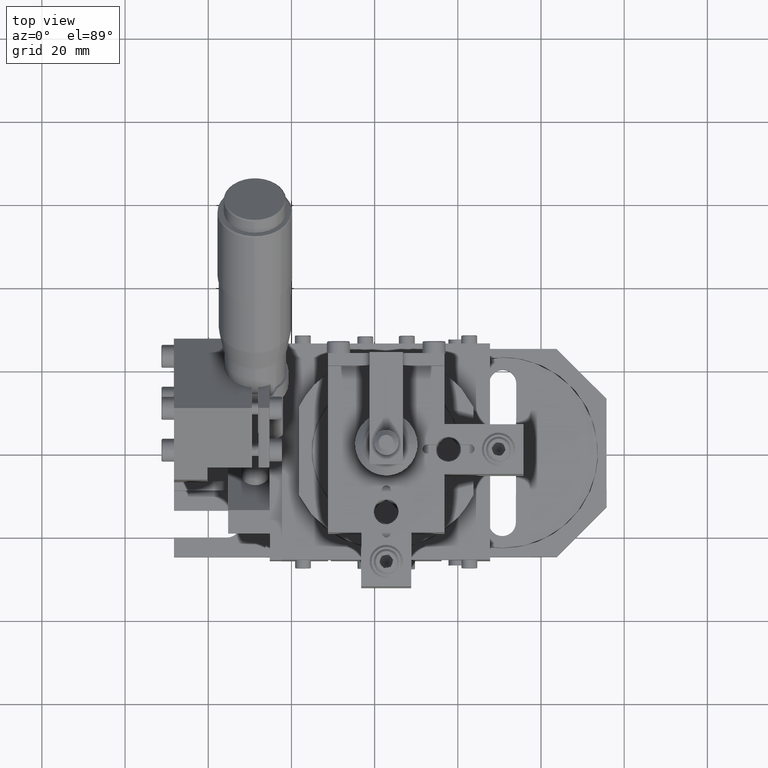
[diagram: clean part render]
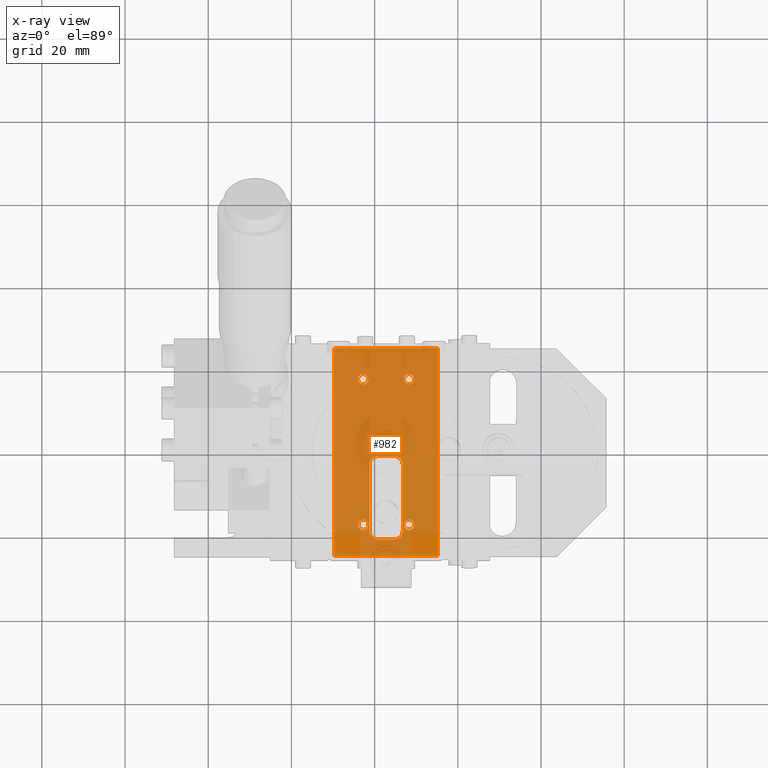
[diagram: x-ray — body ghosted, one internal face saturated and labeled with its STEP entity id]
A machine part, top view, then the same camera in x-ray: the body is ghosted and one INTERNAL B-rep face — a face not visible from any outside direction — is saturated and labeled: STEP entity #982.
In plain terms, the highlighted face is a freeform B-spline surface patch.
Its self-contained STEP definition (entity closure, byte-faithful):
#755=FACE_BOUND('',#3405,.T.);
#756=FACE_BOUND('',#3406,.T.);
#757=FACE_BOUND('',#3407,.T.);
#758=FACE_BOUND('',#3408,.T.);
#759=FACE_BOUND('',#3409,.T.);
#982=ADVANCED_FACE('',(#2186,#755,#756,#757,#758,#759),#42618,.T.);
#2186=FACE_OUTER_BOUND('',#3404,.T.);
#3404=EDGE_LOOP('',(#5074,#5075,#5076,#5077));
#3405=EDGE_LOOP('',(#5078,#5079,#5080,#5081,#5082,#5083,#5084,#5085));
#3406=EDGE_LOOP('',(#5086,#5087,#5088));
#3407=EDGE_LOOP('',(#5089,#5090,#5091));
#3408=EDGE_LOOP('',(#5092,#5093,#5094));
#3409=EDGE_LOOP('',(#5095,#5096,#5097));
#5074=ORIENTED_EDGE('',*,*,#34705,.T.);
#5075=ORIENTED_EDGE('',*,*,#34704,.F.);
#5076=ORIENTED_EDGE('',*,*,#34706,.T.);
#5077=ORIENTED_EDGE('',*,*,#34707,.T.);
#5078=ORIENTED_EDGE('',*,*,#34708,.T.);
#5079=ORIENTED_EDGE('',*,*,#34709,.T.);
#5080=ORIENTED_EDGE('',*,*,#34710,.T.);
#5081=ORIENTED_EDGE('',*,*,#34711,.T.);
#5082=ORIENTED_EDGE('',*,*,#34712,.T.);
#5083=ORIENTED_EDGE('',*,*,#34713,.T.);
#5084=ORIENTED_EDGE('',*,*,#34714,.T.);
#5085=ORIENTED_EDGE('',*,*,#34715,.T.);
#5086=ORIENTED_EDGE('',*,*,#34716,.T.);
#5087=ORIENTED_EDGE('',*,*,#34717,.T.);
#5088=ORIENTED_EDGE('',*,*,#34718,.T.);
#5089=ORIENTED_EDGE('',*,*,#34719,.T.);
#5090=ORIENTED_EDGE('',*,*,#34720,.T.);
#5091=ORIENTED_EDGE('',*,*,#34721,.T.);
#5092=ORIENTED_EDGE('',*,*,#34722,.T.);
#5093=ORIENTED_EDGE('',*,*,#34723,.T.);
#5094=ORIENTED_EDGE('',*,*,#34724,.T.);
#5095=ORIENTED_EDGE('',*,*,#34725,.T.);
#5096=ORIENTED_EDGE('',*,*,#34726,.T.);
#5097=ORIENTED_EDGE('',*,*,#34727,.T.);
#11476=PCURVE('',#42617,#17879);
#11477=PCURVE('',#42618,#17880);
#11478=PCURVE('',#42618,#17881);
#11479=PCURVE('',#42618,#17882);
#11480=PCURVE('',#42618,#17883);
#11481=PCURVE('',#42618,#17884);
#11482=PCURVE('',#42618,#17885);
#11483=PCURVE('',#42618,#17886);
#11484=PCURVE('',#42618,#17887);
#11485=PCURVE('',#42618,#17888);
#11486=PCURVE('',#42618,#17889);
#11487=PCURVE('',#42618,#17890);
#11488=PCURVE('',#42618,#17891);
#11489=PCURVE('',#42618,#17892);
#11490=PCURVE('',#42618,#17893);
#11491=PCURVE('',#42618,#17894);
#11492=PCURVE('',#42618,#17895);
#11493=PCURVE('',#42618,#17896);
#11494=PCURVE('',#42618,#17897);
#11495=PCURVE('',#42618,#17898);
#11496=PCURVE('',#42618,#17899);
#11497=PCURVE('',#42618,#17900);
#11498=PCURVE('',#42618,#17901);
#11499=PCURVE('',#42618,#17902);
#11500=PCURVE('',#42618,#17903);
#11502=PCURVE('',#42619,#17905);
#11616=PCURVE('',#43132,#18019);
#11617=PCURVE('',#43132,#18020);
#11619=PCURVE('',#43133,#18022);
#11636=PCURVE('',#43136,#18039);
#11637=PCURVE('',#43136,#18040);
#11639=PCURVE('',#43137,#18042);
#11667=PCURVE('',#42630,#18070);
#11672=PCURVE('',#43142,#18075);
#11675=PCURVE('',#42631,#18078);
#11680=PCURVE('',#43143,#18083);
#11681=PCURVE('',#42632,#18084);
#11688=PCURVE('',#43144,#18091);
#11689=PCURVE('',#42633,#18092);
#11696=PCURVE('',#43145,#18099);
#11698=PCURVE('',#42634,#18101);
#12247=PCURVE('',#42677,#18650);
#17879=DEFINITIONAL_REPRESENTATION('',(#24357),#93713);
#17880=DEFINITIONAL_REPRESENTATION('',(#24359),#93713);
#17881=DEFINITIONAL_REPRESENTATION('',(#24360),#93713);
#17882=DEFINITIONAL_REPRESENTATION('',(#24362),#93713);
#17883=DEFINITIONAL_REPRESENTATION('',(#24364),#93713);
#17884=DEFINITIONAL_REPRESENTATION('',(#37971),#93713);
#17885=DEFINITIONAL_REPRESENTATION('',(#24366),#93713);
#17886=DEFINITIONAL_REPRESENTATION('',(#37973),#93713);
#17887=DEFINITIONAL_REPRESENTATION('',(#24368),#93713);
#17888=DEFINITIONAL_REPRESENTATION('',(#37975),#93713);
#17889=DEFINITIONAL_REPRESENTATION('',(#24370),#93713);
#17890=DEFINITIONAL_REPRESENTATION('',(#37977),#93713);
#17891=DEFINITIONAL_REPRESENTATION('',(#24372),#93713);
#17892=DEFINITIONAL_REPRESENTATION('',(#37979),#93713);
#17893=DEFINITIONAL_REPRESENTATION('',(#37981),#93713);
#17894=DEFINITIONAL_REPRESENTATION('',(#37983),#93713);
#17895=DEFINITIONAL_REPRESENTATION('',(#37985),#93713);
#17896=DEFINITIONAL_REPRESENTATION('',(#37987),#93713);
#17897=DEFINITIONAL_REPRESENTATION('',(#37989),#93713);
#17898=DEFINITIONAL_REPRESENTATION('',(#37991),#93713);
#17899=DEFINITIONAL_REPRESENTATION('',(#37993),#93713);
#17900=DEFINITIONAL_REPRESENTATION('',(#37995),#93713);
#17901=DEFINITIONAL_REPRESENTATION('',(#37997),#93713);
#17902=DEFINITIONAL_REPRESENTATION('',(#37999),#93713);
#17903=DEFINITIONAL_REPRESENTATION('',(#38001),#93713);
#17905=DEFINITIONAL_REPRESENTATION('',(#24375),#93713);
#18019=DEFINITIONAL_REPRESENTATION('',(#24549),#93713);
#18020=DEFINITIONAL_REPRESENTATION('',(#24550),#93713);
#18022=DEFINITIONAL_REPRESENTATION('',(#24552),#93713);
#18039=DEFINITIONAL_REPRESENTATION('',(#24578),#93713);
#18040=DEFINITIONAL_REPRESENTATION('',(#24579),#93713);
#18042=DEFINITIONAL_REPRESENTATION('',(#24581),#93713);
#18070=DEFINITIONAL_REPRESENTATION('',(#24619),#93713);
#18075=DEFINITIONAL_REPRESENTATION('',(#24627),#93713);
#18078=DEFINITIONAL_REPRESENTATION('',(#24632),#93713);
#18083=DEFINITIONAL_REPRESENTATION('',(#24640),#93713);
#18084=DEFINITIONAL_REPRESENTATION('',(#24641),#93713);
#18091=DEFINITIONAL_REPRESENTATION('',(#24649),#93713);
#18092=DEFINITIONAL_REPRESENTATION('',(#24650),#93713);
#18099=DEFINITIONAL_REPRESENTATION('',(#24658),#93713);
#18101=DEFINITIONAL_REPRESENTATION('',(#24660),#93713);
#18650=DEFINITIONAL_REPRESENTATION('',(#25328),#93713);
#24356=B_SPLINE_CURVE_WITH_KNOTS('',1,(#52980,#52981),.UNSPECIFIED.,.F.,
 .F.,(2,2),(0.,49.9999999999996),.UNSPECIFIED.);
#24357=B_SPLINE_CURVE_WITH_KNOTS('',1,(#52982,#52983),.UNSPECIFIED.,.F.,
 .F.,(2,2),(0.,49.9999999999996),.UNSPECIFIED.);
#24358=B_SPLINE_CURVE_WITH_KNOTS('',1,(#52984,#52985),.UNSPECIFIED.,.F.,
 .F.,(2,2),(0.,24.9999999999999),.UNSPECIFIED.);
#24359=B_SPLINE_CURVE_WITH_KNOTS('',1,(#52986,#52987),.UNSPECIFIED.,.F.,
 .F.,(2,2),(0.,24.9999999999999),.UNSPECIFIED.);
#24360=B_SPLINE_CURVE_WITH_KNOTS('',1,(#52988,#52989),.UNSPECIFIED.,.F.,
 .F.,(2,2),(0.,49.9999999999996),.UNSPECIFIED.);
#24361=B_SPLINE_CURVE_WITH_KNOTS('',1,(#52990,#52991),.UNSPECIFIED.,.F.,
 .F.,(2,2),(-24.9999999999999,0.),.UNSPECIFIED.);
#24362=B_SPLINE_CURVE_WITH_KNOTS('',1,(#52992,#52993),.UNSPECIFIED.,.F.,
 .F.,(2,2),(-24.9999999999999,0.),.UNSPECIFIED.);
#24363=B_SPLINE_CURVE_WITH_KNOTS('',1,(#52994,#52995),.UNSPECIFIED.,.F.,
 .F.,(2,2),(0.,49.9999999999996),.UNSPECIFIED.);
#24364=B_SPLINE_CURVE_WITH_KNOTS('',1,(#52996,#52997),.UNSPECIFIED.,.F.,
 .F.,(2,2),(0.,49.9999999999996),.UNSPECIFIED.);
#24365=B_SPLINE_CURVE_WITH_KNOTS('',1,(#53004,#53005),.UNSPECIFIED.,.F.,
 .F.,(2,2),(0.,15.9999999999996),.UNSPECIFIED.);
#24366=B_SPLINE_CURVE_WITH_KNOTS('',1,(#53006,#53007),.UNSPECIFIED.,.F.,
 .F.,(2,2),(0.,15.9999999999996),.UNSPECIFIED.);
#24367=B_SPLINE_CURVE_WITH_KNOTS('',1,(#53014,#53015),.UNSPECIFIED.,.F.,
 .F.,(2,2),(0.,3.99999999999978),.UNSPECIFIED.);
#24368=B_SPLINE_CURVE_WITH_KNOTS('',1,(#53016,#53017),.UNSPECIFIED.,.F.,
 .F.,(2,2),(0.,3.99999999999978),.UNSPECIFIED.);
#24369=B_SPLINE_CURVE_WITH_KNOTS('',1,(#53024,#53025),.UNSPECIFIED.,.F.,
 .F.,(2,2),(0.,16.0000000000002),.UNSPECIFIED.);
#24370=B_SPLINE_CURVE_WITH_KNOTS('',1,(#53026,#53027),.UNSPECIFIED.,.F.,
 .F.,(2,2),(0.,16.0000000000002),.UNSPECIFIED.);
#24371=B_SPLINE_CURVE_WITH_KNOTS('',1,(#53034,#53035),.UNSPECIFIED.,.F.,
 .F.,(2,2),(0.,4.00000000000077),.UNSPECIFIED.);
#24372=B_SPLINE_CURVE_WITH_KNOTS('',1,(#53036,#53037),.UNSPECIFIED.,.F.,
 .F.,(2,2),(0.,4.00000000000077),.UNSPECIFIED.);
#24375=B_SPLINE_CURVE_WITH_KNOTS('',1,(#53146,#53147),.UNSPECIFIED.,.F.,
 .F.,(2,2),(0.,49.9999999999996),.UNSPECIFIED.);
#24549=B_SPLINE_CURVE_WITH_KNOTS('',1,(#53849,#53850),.UNSPECIFIED.,.F.,
 .F.,(2,2),(3.86258816758862,7.7251763351773),.UNSPECIFIED.);
#24550=B_SPLINE_CURVE_WITH_KNOTS('',1,(#53851,#53852),.UNSPECIFIED.,.F.,
 .F.,(2,2),(1.93211519136081,3.86258816758862),.UNSPECIFIED.);
#24552=B_SPLINE_CURVE_WITH_KNOTS('',1,(#53855,#53856),.UNSPECIFIED.,.F.,
 .F.,(2,2),(0.,1.93211519136081),.UNSPECIFIED.);
#24578=B_SPLINE_CURVE_WITH_KNOTS('',1,(#54066,#54067),.UNSPECIFIED.,.F.,
 .F.,(2,2),(3.86258816758872,7.7251763351773),.UNSPECIFIED.);
#24579=B_SPLINE_CURVE_WITH_KNOTS('',1,(#54068,#54069),.UNSPECIFIED.,.F.,
 .F.,(2,2),(1.93211519136131,3.86258816758872),.UNSPECIFIED.);
#24581=B_SPLINE_CURVE_WITH_KNOTS('',1,(#54072,#54073),.UNSPECIFIED.,.F.,
 .F.,(2,2),(0.,1.93211519136131),.UNSPECIFIED.);
#24619=B_SPLINE_CURVE_WITH_KNOTS('',1,(#54286,#54287),.UNSPECIFIED.,.F.,
 .F.,(2,2),(0.,15.9999999999996),.UNSPECIFIED.);
#24627=B_SPLINE_CURVE_WITH_KNOTS('',1,(#54320,#54321),.UNSPECIFIED.,.F.,
 .F.,(2,2),(-3.1415926535908,0.),.UNSPECIFIED.);
#24632=B_SPLINE_CURVE_WITH_KNOTS('',1,(#54330,#54331),.UNSPECIFIED.,.F.,
 .F.,(2,2),(0.,16.0000000000002),.UNSPECIFIED.);
#24640=B_SPLINE_CURVE_WITH_KNOTS('',1,(#54364,#54365),.UNSPECIFIED.,.F.,
 .F.,(2,2),(-3.14159265358918,0.),.UNSPECIFIED.);
#24641=B_SPLINE_CURVE_WITH_KNOTS('',1,(#54366,#54367),.UNSPECIFIED.,.F.,
 .F.,(2,2),(0.,3.99999999999978),.UNSPECIFIED.);
#24649=B_SPLINE_CURVE_WITH_KNOTS('',1,(#54406,#54407),.UNSPECIFIED.,.F.,
 .F.,(2,2),(-3.14159265358878,0.),.UNSPECIFIED.);
#24650=B_SPLINE_CURVE_WITH_KNOTS('',1,(#54408,#54409),.UNSPECIFIED.,.F.,
 .F.,(2,2),(0.,4.00000000000077),.UNSPECIFIED.);
#24658=B_SPLINE_CURVE_WITH_KNOTS('',1,(#54448,#54449),.UNSPECIFIED.,.F.,
 .F.,(2,2),(-3.14159265358951,0.),.UNSPECIFIED.);
#24660=B_SPLINE_CURVE_WITH_KNOTS('',1,(#54452,#54453),.UNSPECIFIED.,.F.,
 .F.,(2,2),(-24.9999999999999,0.),.UNSPECIFIED.);
#25328=B_SPLINE_CURVE_WITH_KNOTS('',1,(#56810,#56811),.UNSPECIFIED.,.F.,
 .F.,(2,2),(0.,24.9999999999999),.UNSPECIFIED.);
#31364=SURFACE_CURVE('',#24356,(#11476,#11478),.PCURVE_S1.);
#31365=SURFACE_CURVE('',#24358,(#11477,#12247),.PCURVE_S1.);
#31366=SURFACE_CURVE('',#24361,(#11479,#11698),.PCURVE_S1.);
#31367=SURFACE_CURVE('',#24363,(#11480,#11502),.PCURVE_S1.);
#31368=SURFACE_CURVE('',#37970,(#11481,#11696),.PCURVE_S1.);
#31369=SURFACE_CURVE('',#24365,(#11482,#11667),.PCURVE_S1.);
#31370=SURFACE_CURVE('',#37972,(#11483,#11672),.PCURVE_S1.);
#31371=SURFACE_CURVE('',#24367,(#11484,#11681),.PCURVE_S1.);
#31372=SURFACE_CURVE('',#37974,(#11485,#11688),.PCURVE_S1.);
#31373=SURFACE_CURVE('',#24369,(#11486,#11675),.PCURVE_S1.);
#31374=SURFACE_CURVE('',#37976,(#11487,#11680),.PCURVE_S1.);
#31375=SURFACE_CURVE('',#24371,(#11488,#11689),.PCURVE_S1.);
#31376=SURFACE_CURVE('',#37978,(#11489,#11636),.PCURVE_S1.);
#31377=SURFACE_CURVE('',#37980,(#11490,#11639),.PCURVE_S1.);
#31378=SURFACE_CURVE('',#37982,(#11491,#11637),.PCURVE_S1.);
#31379=SURFACE_CURVE('',#37984,(#11492),.PCURVE_S1.);
#31380=SURFACE_CURVE('',#37986,(#11493),.PCURVE_S1.);
#31381=SURFACE_CURVE('',#37988,(#11494),.PCURVE_S1.);
#31382=SURFACE_CURVE('',#37990,(#11495),.PCURVE_S1.);
#31383=SURFACE_CURVE('',#37992,(#11496),.PCURVE_S1.);
#31384=SURFACE_CURVE('',#37994,(#11497),.PCURVE_S1.);
#31385=SURFACE_CURVE('',#37996,(#11498,#11616),.PCURVE_S1.);
#31386=SURFACE_CURVE('',#37998,(#11499,#11619),.PCURVE_S1.);
#31387=SURFACE_CURVE('',#38000,(#11500,#11617),.PCURVE_S1.);
#34704=EDGE_CURVE('',#40505,#40503,#31364,.T.);
#34705=EDGE_CURVE('',#40506,#40503,#31365,.T.);
#34706=EDGE_CURVE('',#40505,#40507,#31366,.T.);
#34707=EDGE_CURVE('',#40507,#40506,#31367,.T.);
#34708=EDGE_CURVE('',#40515,#40508,#31368,.T.);
#34709=EDGE_CURVE('',#40508,#40509,#31369,.T.);
#34710=EDGE_CURVE('',#40509,#40510,#31370,.T.);
#34711=EDGE_CURVE('',#40510,#40511,#31371,.T.);
#34712=EDGE_CURVE('',#40511,#40512,#31372,.T.);
#34713=EDGE_CURVE('',#40512,#40513,#31373,.T.);
#34714=EDGE_CURVE('',#40513,#40514,#31374,.T.);
#34715=EDGE_CURVE('',#40514,#40515,#31375,.T.);
#34716=EDGE_CURVE('',#40517,#40516,#31376,.T.);
#34717=EDGE_CURVE('',#40516,#40593,#31377,.T.);
#34718=EDGE_CURVE('',#40593,#40517,#31378,.T.);
#34719=EDGE_CURVE('',#40519,#40518,#31379,.T.);
#34720=EDGE_CURVE('',#40518,#41351,#31380,.T.);
#34721=EDGE_CURVE('',#41351,#40519,#31381,.T.);
#34722=EDGE_CURVE('',#40520,#40404,#31382,.T.);
#34723=EDGE_CURVE('',#40404,#40403,#31383,.T.);
#34724=EDGE_CURVE('',#40403,#40520,#31384,.T.);
#34725=EDGE_CURVE('',#40522,#40521,#31385,.T.);
#34726=EDGE_CURVE('',#40521,#40585,#31386,.T.);
#34727=EDGE_CURVE('',#40585,#40522,#31387,.T.);
#37970=(
BOUNDED_CURVE()
B_SPLINE_CURVE(2,(#52998,#52999,#53000),.UNSPECIFIED.,.F.,.F.)
B_SPLINE_CURVE_WITH_KNOTS((3,3),(-3.14159265358951,0.),.UNSPECIFIED.)
CURVE()
GEOMETRIC_REPRESENTATION_ITEM()
RATIONAL_B_SPLINE_CURVE((1.,0.707106781186641,1.))
REPRESENTATION_ITEM('')
);
#37971=(
BOUNDED_CURVE()
B_SPLINE_CURVE(2,(#53001,#53002,#53003),.UNSPECIFIED.,.F.,.F.)
B_SPLINE_CURVE_WITH_KNOTS((3,3),(-3.14159265358951,0.),.UNSPECIFIED.)
CURVE()
GEOMETRIC_REPRESENTATION_ITEM()
RATIONAL_B_SPLINE_CURVE((1.,0.707106900395886,1.))
REPRESENTATION_ITEM('')
);
#37972=(
BOUNDED_CURVE()
B_SPLINE_CURVE(2,(#53008,#53009,#53010),.UNSPECIFIED.,.F.,.F.)
B_SPLINE_CURVE_WITH_KNOTS((3,3),(-3.1415926535908,0.),.UNSPECIFIED.)
CURVE()
GEOMETRIC_REPRESENTATION_ITEM()
RATIONAL_B_SPLINE_CURVE((1.,0.707106781186321,1.))
REPRESENTATION_ITEM('')
);
#37973=(
BOUNDED_CURVE()
B_SPLINE_CURVE(2,(#53011,#53012,#53013),.UNSPECIFIED.,.F.,.F.)
B_SPLINE_CURVE_WITH_KNOTS((3,3),(-3.1415926535908,0.),.UNSPECIFIED.)
CURVE()
GEOMETRIC_REPRESENTATION_ITEM()
RATIONAL_B_SPLINE_CURVE((1.,0.707106781186369,1.))
REPRESENTATION_ITEM('')
);
#37974=(
BOUNDED_CURVE()
B_SPLINE_CURVE(2,(#53018,#53019,#53020),.UNSPECIFIED.,.F.,.F.)
B_SPLINE_CURVE_WITH_KNOTS((3,3),(-3.14159265358878,0.),.UNSPECIFIED.)
CURVE()
GEOMETRIC_REPRESENTATION_ITEM()
RATIONAL_B_SPLINE_CURVE((1.,0.707106781186784,1.))
REPRESENTATION_ITEM('')
);
#37975=(
BOUNDED_CURVE()
B_SPLINE_CURVE(2,(#53021,#53022,#53023),.UNSPECIFIED.,.F.,.F.)
B_SPLINE_CURVE_WITH_KNOTS((3,3),(-3.14159265358878,0.),.UNSPECIFIED.)
CURVE()
GEOMETRIC_REPRESENTATION_ITEM()
RATIONAL_B_SPLINE_CURVE((1.,0.707106900396014,1.))
REPRESENTATION_ITEM('')
);
#37976=(
BOUNDED_CURVE()
B_SPLINE_CURVE(2,(#53028,#53029,#53030),.UNSPECIFIED.,.F.,.F.)
B_SPLINE_CURVE_WITH_KNOTS((3,3),(-3.14159265358918,0.),.UNSPECIFIED.)
CURVE()
GEOMETRIC_REPRESENTATION_ITEM()
RATIONAL_B_SPLINE_CURVE((1.,0.707106781186683,1.))
REPRESENTATION_ITEM('')
);
#37977=(
BOUNDED_CURVE()
B_SPLINE_CURVE(2,(#53031,#53032,#53033),.UNSPECIFIED.,.F.,.F.)
B_SPLINE_CURVE_WITH_KNOTS((3,3),(-3.14159265358918,0.),.UNSPECIFIED.)
CURVE()
GEOMETRIC_REPRESENTATION_ITEM()
RATIONAL_B_SPLINE_CURVE((1.,0.707106900395943,1.))
REPRESENTATION_ITEM('')
);
#37978=(
BOUNDED_CURVE()
B_SPLINE_CURVE(2,(#53038,#53039,#53040,#53041,#53042),.UNSPECIFIED.,.F.,
 .F.)
B_SPLINE_CURVE_WITH_KNOTS((3,2,3),(3.86258816758872,5.79388225138301,7.7251763351773),
 .UNSPECIFIED.)
CURVE()
GEOMETRIC_REPRESENTATION_ITEM()
RATIONAL_B_SPLINE_CURVE((1.,0.707106781186572,1.,0.707106781186572,1.))
REPRESENTATION_ITEM('')
);
#37979=(
BOUNDED_CURVE()
B_SPLINE_CURVE(2,(#53043,#53044,#53045,#53046,#53047),.UNSPECIFIED.,.F.,
 .F.)
B_SPLINE_CURVE_WITH_KNOTS((3,2,3),(3.86258816758872,5.79388225138301,7.7251763351773),
 .UNSPECIFIED.)
CURVE()
GEOMETRIC_REPRESENTATION_ITEM()
RATIONAL_B_SPLINE_CURVE((1.,0.707106781186548,1.,0.707106781186548,1.))
REPRESENTATION_ITEM('')
);
#37980=(
BOUNDED_CURVE()
B_SPLINE_CURVE(2,(#53048,#53049,#53050,#53051,#53052),.UNSPECIFIED.,.F.,
 .F.)
B_SPLINE_CURVE_WITH_KNOTS((3,2,3),(0.,0.966057595680653,1.93211519136131),
 .UNSPECIFIED.)
CURVE()
GEOMETRIC_REPRESENTATION_ITEM()
RATIONAL_B_SPLINE_CURVE((1.,0.923815626942182,1.,0.923815626942182,1.))
REPRESENTATION_ITEM('')
);
#37981=(
BOUNDED_CURVE()
B_SPLINE_CURVE(2,(#53053,#53054,#53055,#53056,#53057),.UNSPECIFIED.,.F.,
 .F.)
B_SPLINE_CURVE_WITH_KNOTS((3,2,3),(0.,1.93120333910201,1.93211519136131),
 .UNSPECIFIED.)
CURVE()
GEOMETRIC_REPRESENTATION_ITEM()
RATIONAL_B_SPLINE_CURVE((1.,0.707106781186548,1.,0.99999994424895,1.))
REPRESENTATION_ITEM('')
);
#37982=(
BOUNDED_CURVE()
B_SPLINE_CURVE(2,(#53058,#53059,#53060),.UNSPECIFIED.,.F.,.F.)
B_SPLINE_CURVE_WITH_KNOTS((3,3),(1.93211519136131,3.86258816758872),
 .UNSPECIFIED.)
CURVE()
GEOMETRIC_REPRESENTATION_ITEM()
RATIONAL_B_SPLINE_CURVE((1.,0.707342858363986,1.))
REPRESENTATION_ITEM('')
);
#37983=(
BOUNDED_CURVE()
B_SPLINE_CURVE(2,(#53061,#53062,#53063),.UNSPECIFIED.,.F.,.F.)
B_SPLINE_CURVE_WITH_KNOTS((3,3),(1.93211519136131,3.86258816758872),
 .UNSPECIFIED.)
CURVE()
GEOMETRIC_REPRESENTATION_ITEM()
RATIONAL_B_SPLINE_CURVE((1.,0.707342858363987,1.))
REPRESENTATION_ITEM('')
);
#37984=(
BOUNDED_CURVE()
B_SPLINE_CURVE(2,(#53064,#53065,#53066,#53067,#53068),.UNSPECIFIED.,.F.,
 .F.)
B_SPLINE_CURVE_WITH_KNOTS((3,2,3),(3.86258816758865,5.79388225138298,7.7251763351773),
 .UNSPECIFIED.)
CURVE()
GEOMETRIC_REPRESENTATION_ITEM()
RATIONAL_B_SPLINE_CURVE((1.,0.707106781186548,1.,0.707106781186548,1.))
REPRESENTATION_ITEM('')
);
#37985=(
BOUNDED_CURVE()
B_SPLINE_CURVE(2,(#53069,#53070,#53071,#53072,#53073),.UNSPECIFIED.,.F.,
 .F.)
B_SPLINE_CURVE_WITH_KNOTS((3,2,3),(3.86258816758865,5.79388225138298,7.7251763351773),
 .UNSPECIFIED.)
CURVE()
GEOMETRIC_REPRESENTATION_ITEM()
RATIONAL_B_SPLINE_CURVE((1.,0.707106781186548,1.,0.707106781186548,1.))
REPRESENTATION_ITEM('')
);
#37986=(
BOUNDED_CURVE()
B_SPLINE_CURVE(2,(#53074,#53075,#53076,#53077,#53078),.UNSPECIFIED.,.F.,
 .F.)
B_SPLINE_CURVE_WITH_KNOTS((3,2,3),(0.,1.93129408379433,1.93220597889927),
 .UNSPECIFIED.)
CURVE()
GEOMETRIC_REPRESENTATION_ITEM()
RATIONAL_B_SPLINE_CURVE((1.,0.707106781186548,1.,0.99999994424895,1.))
REPRESENTATION_ITEM('')
);
#37987=(
BOUNDED_CURVE()
B_SPLINE_CURVE(2,(#53079,#53080,#53081,#53082,#53083),.UNSPECIFIED.,.F.,
 .F.)
B_SPLINE_CURVE_WITH_KNOTS((3,2,3),(0.,1.93129408379433,1.93220597889927),
 .UNSPECIFIED.)
CURVE()
GEOMETRIC_REPRESENTATION_ITEM()
RATIONAL_B_SPLINE_CURVE((1.,0.707106781186548,1.,0.99999994424895,1.))
REPRESENTATION_ITEM('')
);
#37988=(
BOUNDED_CURVE()
B_SPLINE_CURVE(2,(#53084,#53085,#53086),.UNSPECIFIED.,.F.,.F.)
B_SPLINE_CURVE_WITH_KNOTS((3,3),(1.93220597889927,3.86258816758865),
 .UNSPECIFIED.)
CURVE()
GEOMETRIC_REPRESENTATION_ITEM()
RATIONAL_B_SPLINE_CURVE((1.,0.707342858363708,1.))
REPRESENTATION_ITEM('')
);
#37989=(
BOUNDED_CURVE()
B_SPLINE_CURVE(2,(#53087,#53088,#53089),.UNSPECIFIED.,.F.,.F.)
B_SPLINE_CURVE_WITH_KNOTS((3,3),(1.93220597889927,3.86258816758865),
 .UNSPECIFIED.)
CURVE()
GEOMETRIC_REPRESENTATION_ITEM()
RATIONAL_B_SPLINE_CURVE((1.,0.707342858363708,1.))
REPRESENTATION_ITEM('')
);
#37990=(
BOUNDED_CURVE()
B_SPLINE_CURVE(2,(#53090,#53091,#53092,#53093,#53094),.UNSPECIFIED.,.F.,
 .F.)
B_SPLINE_CURVE_WITH_KNOTS((3,2,3),(3.86258816758865,5.79388225138298,7.7251763351773),
 .UNSPECIFIED.)
CURVE()
GEOMETRIC_REPRESENTATION_ITEM()
RATIONAL_B_SPLINE_CURVE((1.,0.707106781186548,1.,0.707106781186548,1.))
REPRESENTATION_ITEM('')
);
#37991=(
BOUNDED_CURVE()
B_SPLINE_CURVE(2,(#53095,#53096,#53097,#53098,#53099),.UNSPECIFIED.,.F.,
 .F.)
B_SPLINE_CURVE_WITH_KNOTS((3,2,3),(3.86258816758865,5.79388225138298,7.7251763351773),
 .UNSPECIFIED.)
CURVE()
GEOMETRIC_REPRESENTATION_ITEM()
RATIONAL_B_SPLINE_CURVE((1.,0.707106781186548,1.,0.707106781186548,1.))
REPRESENTATION_ITEM('')
);
#37992=(
BOUNDED_CURVE()
B_SPLINE_CURVE(2,(#53100,#53101,#53102,#53103,#53104),.UNSPECIFIED.,.F.,
 .F.)
B_SPLINE_CURVE_WITH_KNOTS((3,2,3),(0.,1.93129408379433,1.93220597889973),
 .UNSPECIFIED.)
CURVE()
GEOMETRIC_REPRESENTATION_ITEM()
RATIONAL_B_SPLINE_CURVE((1.,0.707106781186548,1.,0.99999994424895,1.))
REPRESENTATION_ITEM('')
);
#37993=(
BOUNDED_CURVE()
B_SPLINE_CURVE(2,(#53105,#53106,#53107,#53108,#53109),.UNSPECIFIED.,.F.,
 .F.)
B_SPLINE_CURVE_WITH_KNOTS((3,2,3),(0.,1.93129408379433,1.93220597889973),
 .UNSPECIFIED.)
CURVE()
GEOMETRIC_REPRESENTATION_ITEM()
RATIONAL_B_SPLINE_CURVE((1.,0.707106781186548,1.,0.99999994424895,1.))
REPRESENTATION_ITEM('')
);
#37994=(
BOUNDED_CURVE()
B_SPLINE_CURVE(2,(#53110,#53111,#53112),.UNSPECIFIED.,.F.,.F.)
B_SPLINE_CURVE_WITH_KNOTS((3,3),(1.93220597889973,3.86258816758865),
 .UNSPECIFIED.)
CURVE()
GEOMETRIC_REPRESENTATION_ITEM()
RATIONAL_B_SPLINE_CURVE((1.,0.707342858363826,1.))
REPRESENTATION_ITEM('')
);
#37995=(
BOUNDED_CURVE()
B_SPLINE_CURVE(2,(#53113,#53114,#53115),.UNSPECIFIED.,.F.,.F.)
B_SPLINE_CURVE_WITH_KNOTS((3,3),(1.93220597889973,3.86258816758865),
 .UNSPECIFIED.)
CURVE()
GEOMETRIC_REPRESENTATION_ITEM()
RATIONAL_B_SPLINE_CURVE((1.,0.707342858363826,1.))
REPRESENTATION_ITEM('')
);
#37996=(
BOUNDED_CURVE()
B_SPLINE_CURVE(2,(#53116,#53117,#53118,#53119,#53120),.UNSPECIFIED.,.F.,
 .F.)
B_SPLINE_CURVE_WITH_KNOTS((3,2,3),(3.86258816758862,5.79388225138296,7.7251763351773),
 .UNSPECIFIED.)
CURVE()
GEOMETRIC_REPRESENTATION_ITEM()
RATIONAL_B_SPLINE_CURVE((1.,0.707106781186554,1.,0.707106781186554,1.))
REPRESENTATION_ITEM('')
);
#37997=(
BOUNDED_CURVE()
B_SPLINE_CURVE(2,(#53121,#53122,#53123,#53124,#53125),.UNSPECIFIED.,.F.,
 .F.)
B_SPLINE_CURVE_WITH_KNOTS((3,2,3),(3.86258816758862,5.79388225138296,7.7251763351773),
 .UNSPECIFIED.)
CURVE()
GEOMETRIC_REPRESENTATION_ITEM()
RATIONAL_B_SPLINE_CURVE((1.,0.707106781186548,1.,0.707106781186548,1.))
REPRESENTATION_ITEM('')
);
#37998=(
BOUNDED_CURVE()
B_SPLINE_CURVE(2,(#53126,#53127,#53128,#53129,#53130),.UNSPECIFIED.,.F.,
 .F.)
B_SPLINE_CURVE_WITH_KNOTS((3,2,3),(0.,0.966057595680404,1.93211519136081),
 .UNSPECIFIED.)
CURVE()
GEOMETRIC_REPRESENTATION_ITEM()
RATIONAL_B_SPLINE_CURVE((1.,0.923815626942225,1.,0.923815626942225,1.))
REPRESENTATION_ITEM('')
);
#37999=(
BOUNDED_CURVE()
B_SPLINE_CURVE(2,(#53131,#53132,#53133,#53134,#53135),.UNSPECIFIED.,.F.,
 .F.)
B_SPLINE_CURVE_WITH_KNOTS((3,2,3),(0.,1.93120333910205,1.93211519136081),
 .UNSPECIFIED.)
CURVE()
GEOMETRIC_REPRESENTATION_ITEM()
RATIONAL_B_SPLINE_CURVE((1.,0.707106781186548,1.,0.99999994424895,1.))
REPRESENTATION_ITEM('')
);
#38000=(
BOUNDED_CURVE()
B_SPLINE_CURVE(2,(#53136,#53137,#53138),.UNSPECIFIED.,.F.,.F.)
B_SPLINE_CURVE_WITH_KNOTS((3,3),(1.93211519136081,3.86258816758862),
 .UNSPECIFIED.)
CURVE()
GEOMETRIC_REPRESENTATION_ITEM()
RATIONAL_B_SPLINE_CURVE((1.,0.707342858363908,1.))
REPRESENTATION_ITEM('')
);
#38001=(
BOUNDED_CURVE()
B_SPLINE_CURVE(2,(#53139,#53140,#53141),.UNSPECIFIED.,.F.,.F.)
B_SPLINE_CURVE_WITH_KNOTS((3,3),(1.93211519136081,3.86258816758862),
 .UNSPECIFIED.)
CURVE()
GEOMETRIC_REPRESENTATION_ITEM()
RATIONAL_B_SPLINE_CURVE((1.,0.707342858363848,1.))
REPRESENTATION_ITEM('')
);
#40403=VERTEX_POINT('',#50518);
#40404=VERTEX_POINT('',#50519);
#40503=VERTEX_POINT('',#50618);
#40505=VERTEX_POINT('',#50620);
#40506=VERTEX_POINT('',#50621);
#40507=VERTEX_POINT('',#50622);
#40508=VERTEX_POINT('',#50623);
#40509=VERTEX_POINT('',#50624);
#40510=VERTEX_POINT('',#50625);
#40511=VERTEX_POINT('',#50626);
#40512=VERTEX_POINT('',#50627);
#40513=VERTEX_POINT('',#50628);
#40514=VERTEX_POINT('',#50629);
#40515=VERTEX_POINT('',#50630);
#40516=VERTEX_POINT('',#50631);
#40517=VERTEX_POINT('',#50632);
#40518=VERTEX_POINT('',#50633);
#40519=VERTEX_POINT('',#50634);
#40520=VERTEX_POINT('',#50635);
#40521=VERTEX_POINT('',#50636);
#40522=VERTEX_POINT('',#50637);
#40585=VERTEX_POINT('',#50700);
#40593=VERTEX_POINT('',#50708);
#41351=VERTEX_POINT('',#51466);
#42617=B_SPLINE_SURFACE_WITH_KNOTS('',1,1,((#44908,#44909),(#44910,#44911)),
 .UNSPECIFIED.,.F.,.F.,.F.,(2,2),(2,2),(-55.1200801138659,5.12008011386659),
(-2.32000000000011,0.320000000000117),.UNSPECIFIED.);
#42618=B_SPLINE_SURFACE_WITH_KNOTS('',1,1,((#44912,#44913),(#44914,#44915)),
 .UNSPECIFIED.,.F.,.F.,.F.,(2,2),(2,2),(-5.14011526609873,55.1401152660982),
(-2.66015041833105,27.6601504183311),.UNSPECIFIED.);
#42619=B_SPLINE_SURFACE_WITH_KNOTS('',1,1,((#44916,#44917),(#44918,#44919)),
 .UNSPECIFIED.,.F.,.F.,.F.,(2,2),(2,2),(-5.12008011386671,55.1200801138659),
(-0.320000000000113,2.32000000000012),.UNSPECIFIED.);
#42630=B_SPLINE_SURFACE_WITH_KNOTS('',1,1,((#45278,#45279),(#45280,#45281)),
 .UNSPECIFIED.,.F.,.F.,.F.,(2,2),(2,2),(-6.10229190591014,0.663844718719093),
(0.279919886134121,19.7200801138662),.UNSPECIFIED.);
#42631=B_SPLINE_SURFACE_WITH_KNOTS('',1,1,((#45300,#45301),(#45302,#45303)),
 .UNSPECIFIED.,.F.,.F.,.F.,(2,2),(2,2),(-6.10229190591042,0.663844718719164),
(0.279919886133675,19.7200801138665),.UNSPECIFIED.);
#42632=B_SPLINE_SURFACE_WITH_KNOTS('',1,1,((#45322,#45323),(#45324,#45325)),
 .UNSPECIFIED.,.F.,.F.,.F.,(2,2),(2,2),(-3.93575823843596,0.46688711258509),
(1.47991988613409,6.52008011386652),.UNSPECIFIED.);
#42633=B_SPLINE_SURFACE_WITH_KNOTS('',1,1,((#45344,#45345),(#45346,#45347)),
 .UNSPECIFIED.,.F.,.F.,.F.,(2,2),(2,2),(-3.93575823843589,0.466887112585181),
(1.47991988613303,6.52008011386654),.UNSPECIFIED.);
#42634=B_SPLINE_SURFACE_WITH_KNOTS('',1,1,((#45366,#45367),(#45368,#45369)),
 .UNSPECIFIED.,.F.,.F.,.F.,(2,2),(2,2),(6.70790581162318,8.44790581162321),
(-15.1200801138667,15.1200801138657),.UNSPECIFIED.);
#42677=B_SPLINE_SURFACE_WITH_KNOTS('',1,1,((#46360,#46361),(#46362,#46363)),
 .UNSPECIFIED.,.F.,.F.,.F.,(2,2),(2,2),(-8.52000000000001,8.52000000000001),
(-16.0800801138661,16.0800801138672),.UNSPECIFIED.);
#43132=(
BOUNDED_SURFACE()
B_SPLINE_SURFACE(1,2,((#45098,#45099,#45100,#45101,#45102,#45103,#45104,
#45105,#45106),(#45107,#45108,#45109,#45110,#45111,#45112,#45113,#45114,
#45115)),.UNSPECIFIED.,.F.,.F.,.F.)
B_SPLINE_SURFACE_WITH_KNOTS((2,2),(3,2,2,2,3),(0.,14.1720000000006),(0.,
1.5707963267949,3.14159265358979,4.71238898038469,6.28318530717959),
 .UNSPECIFIED.)
GEOMETRIC_REPRESENTATION_ITEM()
RATIONAL_B_SPLINE_SURFACE(((1.,0.707106781186548,1.,0.707106781186548,1.,
0.707106781186548,1.,0.707106781186548,1.),(1.,0.707106781186548,1.,0.707106781186548,
1.,0.707106781186548,1.,0.707106781186548,1.)))
REPRESENTATION_ITEM('')
SURFACE()
);
#43133=(
BOUNDED_SURFACE()
B_SPLINE_SURFACE(1,2,((#45116,#45117,#45118,#45119,#45120,#45121,#45122,
#45123,#45124),(#45125,#45126,#45127,#45128,#45129,#45130,#45131,#45132,
#45133)),.UNSPECIFIED.,.F.,.F.,.F.)
B_SPLINE_SURFACE_WITH_KNOTS((2,2),(3,2,2,2,3),(0.,14.1720000000006),(0.,
1.5707963267949,3.14159265358979,4.71238898038469,6.28318530717959),
 .UNSPECIFIED.)
GEOMETRIC_REPRESENTATION_ITEM()
RATIONAL_B_SPLINE_SURFACE(((1.,0.707106781186548,1.,0.707106781186548,1.,
0.707106781186548,1.,0.707106781186548,1.),(1.,0.707106781186548,1.,0.707106781186548,
1.,0.707106781186548,1.,0.707106781186548,1.)))
REPRESENTATION_ITEM('')
SURFACE()
);
#43136=(
BOUNDED_SURFACE()
B_SPLINE_SURFACE(1,2,((#45170,#45171,#45172,#45173,#45174,#45175,#45176,
#45177,#45178),(#45179,#45180,#45181,#45182,#45183,#45184,#45185,#45186,
#45187)),.UNSPECIFIED.,.F.,.F.,.F.)
B_SPLINE_SURFACE_WITH_KNOTS((2,2),(3,2,2,2,3),(0.,3.49699725948614),(0.,
1.5707963267949,3.14159265358979,4.71238898038469,6.28318530717959),
 .UNSPECIFIED.)
GEOMETRIC_REPRESENTATION_ITEM()
RATIONAL_B_SPLINE_SURFACE(((1.,0.707106781186548,1.,0.707106781186548,1.,
0.707106781186548,1.,0.707106781186548,1.),(1.,0.707106781186548,1.,0.707106781186548,
1.,0.707106781186548,1.,0.707106781186548,1.)))
REPRESENTATION_ITEM('')
SURFACE()
);
#43137=(
BOUNDED_SURFACE()
B_SPLINE_SURFACE(1,2,((#45188,#45189,#45190,#45191,#45192,#45193,#45194,
#45195,#45196),(#45197,#45198,#45199,#45200,#45201,#45202,#45203,#45204,
#45205)),.UNSPECIFIED.,.F.,.F.,.F.)
B_SPLINE_SURFACE_WITH_KNOTS((2,2),(3,2,2,2,3),(0.,3.49699725948614),(0.,
1.5707963267949,3.14159265358979,4.71238898038469,6.28318530717959),
 .UNSPECIFIED.)
GEOMETRIC_REPRESENTATION_ITEM()
RATIONAL_B_SPLINE_SURFACE(((1.,0.707106781186548,1.,0.707106781186548,1.,
0.707106781186548,1.,0.707106781186548,1.),(1.,0.707106781186548,1.,0.707106781186548,
1.,0.707106781186548,1.,0.707106781186548,1.)))
REPRESENTATION_ITEM('')
SURFACE()
);
#43142=(
BOUNDED_SURFACE()
B_SPLINE_SURFACE(1,2,((#45282,#45283,#45284,#45285,#45286,#45287,#45288,
#45289,#45290),(#45291,#45292,#45293,#45294,#45295,#45296,#45297,#45298,
#45299)),.UNSPECIFIED.,.F.,.F.,.F.)
B_SPLINE_SURFACE_WITH_KNOTS((2,2),(3,2,2,2,3),(0.,6.76613662462955),(0.,
1.5707963267949,3.14159265358979,4.71238898038469,6.28318530717959),
 .UNSPECIFIED.)
GEOMETRIC_REPRESENTATION_ITEM()
RATIONAL_B_SPLINE_SURFACE(((1.,0.707106781186548,1.,0.707106781186548,1.,
0.707106781186548,1.,0.707106781186548,1.),(1.,0.707106781186548,1.,0.707106781186548,
1.,0.707106781186548,1.,0.707106781186548,1.)))
REPRESENTATION_ITEM('')
SURFACE()
);
#43143=(
BOUNDED_SURFACE()
B_SPLINE_SURFACE(1,2,((#45304,#45305,#45306,#45307,#45308,#45309,#45310,
#45311,#45312),(#45313,#45314,#45315,#45316,#45317,#45318,#45319,#45320,
#45321)),.UNSPECIFIED.,.F.,.F.,.F.)
B_SPLINE_SURFACE_WITH_KNOTS((2,2),(3,2,2,2,3),(0.,6.76613662462955),(0.,
1.5707963267949,3.14159265358979,4.71238898038469,6.28318530717959),
 .UNSPECIFIED.)
GEOMETRIC_REPRESENTATION_ITEM()
RATIONAL_B_SPLINE_SURFACE(((1.,0.707106781186548,1.,0.707106781186548,1.,
0.707106781186548,1.,0.707106781186548,1.),(1.,0.707106781186548,1.,0.707106781186548,
1.,0.707106781186548,1.,0.707106781186548,1.)))
REPRESENTATION_ITEM('')
SURFACE()
);
#43144=(
BOUNDED_SURFACE()
B_SPLINE_SURFACE(1,2,((#45326,#45327,#45328,#45329,#45330,#45331,#45332,
#45333,#45334),(#45335,#45336,#45337,#45338,#45339,#45340,#45341,#45342,
#45343)),.UNSPECIFIED.,.F.,.F.,.F.)
B_SPLINE_SURFACE_WITH_KNOTS((2,2),(3,2,2,2,3),(0.,6.76613662462944),(0.,
1.5707963267949,3.14159265358979,4.71238898038469,6.28318530717959),
 .UNSPECIFIED.)
GEOMETRIC_REPRESENTATION_ITEM()
RATIONAL_B_SPLINE_SURFACE(((1.,0.707106781186548,1.,0.707106781186548,1.,
0.707106781186548,1.,0.707106781186548,1.),(1.,0.707106781186548,1.,0.707106781186548,
1.,0.707106781186548,1.,0.707106781186548,1.)))
REPRESENTATION_ITEM('')
SURFACE()
);
#43145=(
BOUNDED_SURFACE()
B_SPLINE_SURFACE(1,2,((#45348,#45349,#45350,#45351,#45352,#45353,#45354,
#45355,#45356),(#45357,#45358,#45359,#45360,#45361,#45362,#45363,#45364,
#45365)),.UNSPECIFIED.,.F.,.F.,.F.)
B_SPLINE_SURFACE_WITH_KNOTS((2,2),(3,2,2,2,3),(0.,6.76613662462931),(0.,
1.5707963267949,3.14159265358979,4.71238898038469,6.28318530717959),
 .UNSPECIFIED.)
GEOMETRIC_REPRESENTATION_ITEM()
RATIONAL_B_SPLINE_SURFACE(((1.,0.707106781186548,1.,0.707106781186548,1.,
0.707106781186548,1.,0.707106781186548,1.),(1.,0.707106781186548,1.,0.707106781186548,
1.,0.707106781186548,1.,0.707106781186548,1.)))
REPRESENTATION_ITEM('')
SURFACE()
);
#44908=CARTESIAN_POINT('',(232.864465113868,75.9339220482597,-113.949104911938));
#44909=CARTESIAN_POINT('',(232.864465113868,73.2939220482595,-113.949104911938));
#44910=CARTESIAN_POINT('',(232.824234412208,75.9339220482596,-53.7089581180138));
#44911=CARTESIAN_POINT('',(232.824234412208,73.2939220482594,-53.7089581180139));
#44912=CARTESIAN_POINT('',(205.164076781959,73.6139220482595,-53.7073954851826));
#44913=CARTESIAN_POINT('',(235.484370857067,73.6139220482595,-53.6871464192338));
#44914=CARTESIAN_POINT('',(205.204334244114,73.6139220482596,-113.987612574635));
#44915=CARTESIAN_POINT('',(235.524628319222,73.6139220482597,-113.967363508687));
#44916=CARTESIAN_POINT('',(207.824239987313,75.9339220482596,-53.7256540819307));
#44917=CARTESIAN_POINT('',(207.824239987313,73.2939220482594,-53.7256540819307));
#44918=CARTESIAN_POINT('',(207.864470688973,75.9339220482597,-113.965800875855));
#44919=CARTESIAN_POINT('',(207.864470688973,73.2939220482595,-113.965800875855));
#45098=CARTESIAN_POINT('',(225.832664149326,72.3329220482595,-65.1042102874464));
#45099=CARTESIAN_POINT('',(227.062164149326,72.3329220482595,-65.1042102874464));
#45100=CARTESIAN_POINT('',(227.062164149326,72.3329220482595,-66.3337102874464));
#45101=CARTESIAN_POINT('',(227.062164149326,72.3329220482595,-67.5632102874464));
#45102=CARTESIAN_POINT('',(225.832664149326,72.3329220482595,-67.5632102874464));
#45103=CARTESIAN_POINT('',(224.603164149326,72.3329220482595,-67.5632102874464));
#45104=CARTESIAN_POINT('',(224.603164149326,72.3329220482595,-66.3337102874464));
#45105=CARTESIAN_POINT('',(224.603164149326,72.3329220482595,-65.1042102874464));
#45106=CARTESIAN_POINT('',(225.832664149326,72.3329220482595,-65.1042102874464));
#45107=CARTESIAN_POINT('',(225.832664149326,86.50492204826,-65.1042102874464));
#45108=CARTESIAN_POINT('',(227.062164149326,86.50492204826,-65.1042102874464));
#45109=CARTESIAN_POINT('',(227.062164149326,86.50492204826,-66.3337102874464));
#45110=CARTESIAN_POINT('',(227.062164149326,86.50492204826,-67.5632102874464));
#45111=CARTESIAN_POINT('',(225.832664149326,86.50492204826,-67.5632102874464));
#45112=CARTESIAN_POINT('',(224.603164149326,86.50492204826,-67.5632102874465));
#45113=CARTESIAN_POINT('',(224.603164149326,86.50492204826,-66.3337102874464));
#45114=CARTESIAN_POINT('',(224.603164149326,86.50492204826,-65.1042102874464));
#45115=CARTESIAN_POINT('',(225.832664149326,86.50492204826,-65.1042102874464));
#45116=CARTESIAN_POINT('',(225.832664149326,72.3329220482595,-65.1042102874464));
#45117=CARTESIAN_POINT('',(227.062164149326,72.3329220482595,-65.1042102874464));
#45118=CARTESIAN_POINT('',(227.062164149326,72.3329220482595,-66.3337102874464));
#45119=CARTESIAN_POINT('',(227.062164149326,72.3329220482595,-67.5632102874464));
#45120=CARTESIAN_POINT('',(225.832664149326,72.3329220482595,-67.5632102874464));
#45121=CARTESIAN_POINT('',(224.603164149326,72.3329220482595,-67.5632102874464));
#45122=CARTESIAN_POINT('',(224.603164149326,72.3329220482595,-66.3337102874464));
#45123=CARTESIAN_POINT('',(224.603164149326,72.3329220482595,-65.1042102874464));
#45124=CARTESIAN_POINT('',(225.832664149326,72.3329220482595,-65.1042102874464));
#45125=CARTESIAN_POINT('',(225.832664149326,86.50492204826,-65.1042102874464));
#45126=CARTESIAN_POINT('',(227.062164149326,86.50492204826,-65.1042102874464));
#45127=CARTESIAN_POINT('',(227.062164149326,86.50492204826,-66.3337102874464));
#45128=CARTESIAN_POINT('',(227.062164149326,86.50492204826,-67.5632102874464));
#45129=CARTESIAN_POINT('',(225.832664149326,86.50492204826,-67.5632102874464));
#45130=CARTESIAN_POINT('',(224.603164149326,86.50492204826,-67.5632102874465));
#45131=CARTESIAN_POINT('',(224.603164149326,86.50492204826,-66.3337102874464));
#45132=CARTESIAN_POINT('',(224.603164149326,86.50492204826,-65.1042102874464));
#45133=CARTESIAN_POINT('',(225.832664149326,86.50492204826,-65.1042102874464));
#45170=CARTESIAN_POINT('',(214.856040951855,73.2225056099691,-100.111548706423));
#45171=CARTESIAN_POINT('',(216.085540951855,73.2225056099691,-100.111548706423));
#45172=CARTESIAN_POINT('',(216.085540951855,73.2225056099691,-101.341048706423));
#45173=CARTESIAN_POINT('',(216.085540951855,73.2225056099691,-102.570548706423));
#45174=CARTESIAN_POINT('',(214.856040951855,73.2225056099691,-102.570548706423));
#45175=CARTESIAN_POINT('',(213.626540951855,73.2225056099691,-102.570548706423));
#45176=CARTESIAN_POINT('',(213.626540951855,73.2225056099691,-101.341048706423));
#45177=CARTESIAN_POINT('',(213.626540951855,73.2225056099691,-100.111548706423));
#45178=CARTESIAN_POINT('',(214.856040951855,73.2225056099691,-100.111548706423));
#45179=CARTESIAN_POINT('',(214.856040951855,76.7195028694552,-100.111548706423));
#45180=CARTESIAN_POINT('',(216.085540951855,76.7195028694552,-100.111548706423));
#45181=CARTESIAN_POINT('',(216.085540951855,76.7195028694552,-101.341048706423));
#45182=CARTESIAN_POINT('',(216.085540951855,76.7195028694552,-102.570548706423));
#45183=CARTESIAN_POINT('',(214.856040951855,76.7195028694552,-102.570548706423));
#45184=CARTESIAN_POINT('',(213.626540951855,76.7195028694552,-102.570548706423));
#45185=CARTESIAN_POINT('',(213.626540951855,76.7195028694552,-101.341048706423));
#45186=CARTESIAN_POINT('',(213.626540951855,76.7195028694552,-100.111548706423));
#45187=CARTESIAN_POINT('',(214.856040951855,76.7195028694552,-100.111548706423));
#45188=CARTESIAN_POINT('',(214.856040951855,73.2225056099691,-100.111548706423));
#45189=CARTESIAN_POINT('',(216.085540951855,73.2225056099691,-100.111548706423));
#45190=CARTESIAN_POINT('',(216.085540951855,73.2225056099691,-101.341048706423));
#45191=CARTESIAN_POINT('',(216.085540951855,73.2225056099691,-102.570548706423));
#45192=CARTESIAN_POINT('',(214.856040951855,73.2225056099691,-102.570548706423));
#45193=CARTESIAN_POINT('',(213.626540951855,73.2225056099691,-102.570548706423));
#45194=CARTESIAN_POINT('',(213.626540951855,73.2225056099691,-101.341048706423));
#45195=CARTESIAN_POINT('',(213.626540951855,73.2225056099691,-100.111548706423));
#45196=CARTESIAN_POINT('',(214.856040951855,73.2225056099691,-100.111548706423));
#45197=CARTESIAN_POINT('',(214.856040951855,76.7195028694552,-100.111548706423));
#45198=CARTESIAN_POINT('',(216.085540951855,76.7195028694552,-100.111548706423));
#45199=CARTESIAN_POINT('',(216.085540951855,76.7195028694552,-101.341048706423));
#45200=CARTESIAN_POINT('',(216.085540951855,76.7195028694552,-102.570548706423));
#45201=CARTESIAN_POINT('',(214.856040951855,76.7195028694552,-102.570548706423));
#45202=CARTESIAN_POINT('',(213.626540951855,76.7195028694552,-102.570548706423));
#45203=CARTESIAN_POINT('',(213.626540951855,76.7195028694552,-101.341048706423));
#45204=CARTESIAN_POINT('',(213.626540951855,76.7195028694552,-100.111548706423));
#45205=CARTESIAN_POINT('',(214.856040951855,76.7195028694552,-100.111548706423));
#45278=CARTESIAN_POINT('',(224.358189326971,79.7162139541697,-104.554783635909));
#45279=CARTESIAN_POINT('',(224.345206438423,79.7162139541697,-85.1146277434143));
#45280=CARTESIAN_POINT('',(224.358189326971,72.9500773295405,-104.554783635909));
#45281=CARTESIAN_POINT('',(224.345206438423,72.9500773295405,-85.1146277434143));
#45282=CARTESIAN_POINT('',(222.357041037159,72.9500773295405,-100.836039582742));
#45283=CARTESIAN_POINT('',(224.357041037159,72.9500773295405,-100.836039582742));
#45284=CARTESIAN_POINT('',(224.357041037159,72.9500773295405,-102.836039582742));
#45285=CARTESIAN_POINT('',(224.357041037159,72.9500773295405,-104.836039582742));
#45286=CARTESIAN_POINT('',(222.357041037159,72.9500773295405,-104.836039582742));
#45287=CARTESIAN_POINT('',(220.357041037159,72.9500773295405,-104.836039582742));
#45288=CARTESIAN_POINT('',(220.357041037159,72.9500773295405,-102.836039582742));
#45289=CARTESIAN_POINT('',(220.357041037159,72.9500773295405,-100.836039582742));
#45290=CARTESIAN_POINT('',(222.357041037159,72.9500773295405,-100.836039582742));
#45291=CARTESIAN_POINT('',(222.357041037159,79.71621395417,-100.836039582742));
#45292=CARTESIAN_POINT('',(224.357041037159,79.71621395417,-100.836039582742));
#45293=CARTESIAN_POINT('',(224.357041037159,79.71621395417,-102.836039582742));
#45294=CARTESIAN_POINT('',(224.357041037159,79.71621395417,-104.836039582742));
#45295=CARTESIAN_POINT('',(222.357041037159,79.71621395417,-104.836039582742));
#45296=CARTESIAN_POINT('',(220.357041037159,79.71621395417,-104.836039582742));
#45297=CARTESIAN_POINT('',(220.357041037159,79.71621395417,-102.836039582742));
#45298=CARTESIAN_POINT('',(220.357041037159,79.71621395417,-100.836039582742));
#45299=CARTESIAN_POINT('',(222.357041037159,79.71621395417,-100.836039582742));
#45300=CARTESIAN_POINT('',(216.345208222457,79.7162139541699,-85.1199704518677));
#45301=CARTESIAN_POINT('',(216.358191111005,79.71621395417,-104.560126344363));
#45302=CARTESIAN_POINT('',(216.345208222457,72.9500773295403,-85.1199704518677));
#45303=CARTESIAN_POINT('',(216.358191111005,72.9500773295404,-104.560126344363));
#45304=CARTESIAN_POINT('',(218.346356512269,72.9500773295404,-88.8387145050355));
#45305=CARTESIAN_POINT('',(216.346356512269,72.9500773295404,-88.8387145050355));
#45306=CARTESIAN_POINT('',(216.346356512269,72.9500773295404,-86.8387145050355));
#45307=CARTESIAN_POINT('',(216.346356512269,72.9500773295404,-84.8387145050355));
#45308=CARTESIAN_POINT('',(218.346356512269,72.9500773295404,-84.8387145050355));
#45309=CARTESIAN_POINT('',(220.346356512269,72.9500773295404,-84.8387145050355));
#45310=CARTESIAN_POINT('',(220.346356512269,72.9500773295404,-86.8387145050355));
#45311=CARTESIAN_POINT('',(220.346356512269,72.9500773295404,-88.8387145050355));
#45312=CARTESIAN_POINT('',(218.346356512269,72.9500773295404,-88.8387145050355));
#45313=CARTESIAN_POINT('',(218.346356512269,79.7162139541699,-88.8387145050355));
#45314=CARTESIAN_POINT('',(216.346356512269,79.7162139541699,-88.8387145050355));
#45315=CARTESIAN_POINT('',(216.346356512269,79.7162139541699,-86.8387145050355));
#45316=CARTESIAN_POINT('',(216.346356512269,79.7162139541699,-84.8387145050355));
#45317=CARTESIAN_POINT('',(218.346356512269,79.7162139541699,-84.8387145050355));
#45318=CARTESIAN_POINT('',(220.346356512269,79.7162139541699,-84.8387145050355));
#45319=CARTESIAN_POINT('',(220.346356512269,79.7162139541699,-86.8387145050355));
#45320=CARTESIAN_POINT('',(220.346356512269,79.7162139541699,-88.8387145050355));
#45321=CARTESIAN_POINT('',(218.346356512269,79.7162139541699,-88.8387145050355));
#45322=CARTESIAN_POINT('',(217.838297608403,77.5496802866956,-104.839057820512));
#45323=CARTESIAN_POINT('',(222.878456712158,77.5496802866956,-104.83569180718));
#45324=CARTESIAN_POINT('',(217.838297608403,73.1470349356745,-104.839057820512));
#45325=CARTESIAN_POINT('',(222.878456712158,73.1470349356745,-104.83569180718));
#45326=CARTESIAN_POINT('',(218.357041929176,72.9500773295405,-100.838710936968));
#45327=CARTESIAN_POINT('',(220.357041929176,72.9500773295405,-100.838710936968));
#45328=CARTESIAN_POINT('',(220.357041929176,72.9500773295405,-102.838710936968));
#45329=CARTESIAN_POINT('',(220.357041929176,72.9500773295405,-104.838710936968));
#45330=CARTESIAN_POINT('',(218.357041929176,72.9500773295405,-104.838710936968));
#45331=CARTESIAN_POINT('',(216.357041929176,72.9500773295405,-104.838710936968));
#45332=CARTESIAN_POINT('',(216.357041929176,72.9500773295405,-102.838710936968));
#45333=CARTESIAN_POINT('',(216.357041929176,72.9500773295405,-100.838710936968));
#45334=CARTESIAN_POINT('',(218.357041929176,72.9500773295405,-100.838710936968));
#45335=CARTESIAN_POINT('',(218.357041929176,79.7162139541699,-100.838710936968));
#45336=CARTESIAN_POINT('',(220.357041929176,79.7162139541699,-100.838710936968));
#45337=CARTESIAN_POINT('',(220.357041929176,79.7162139541699,-102.838710936968));
#45338=CARTESIAN_POINT('',(220.357041929176,79.7162139541699,-104.838710936968));
#45339=CARTESIAN_POINT('',(218.357041929176,79.7162139541699,-104.838710936968));
#45340=CARTESIAN_POINT('',(216.357041929176,79.7162139541699,-104.838710936968));
#45341=CARTESIAN_POINT('',(216.357041929176,79.7162139541699,-102.838710936968));
#45342=CARTESIAN_POINT('',(216.357041929176,79.7162139541699,-100.838710936968));
#45343=CARTESIAN_POINT('',(218.357041929176,79.7162139541699,-100.838710936968));
#45344=CARTESIAN_POINT('',(222.865099941025,77.5496802866955,-84.8356962672645));
#45345=CARTESIAN_POINT('',(217.824940837269,77.5496802866955,-84.8390622805965));
#45346=CARTESIAN_POINT('',(222.865099941025,73.1470349356744,-84.8356962672646));
#45347=CARTESIAN_POINT('',(217.824940837269,73.1470349356744,-84.8390622805965));
#45348=CARTESIAN_POINT('',(222.346355620252,72.9500773295404,-88.8360431508088));
#45349=CARTESIAN_POINT('',(220.346355620252,72.9500773295404,-88.8360431508088));
#45350=CARTESIAN_POINT('',(220.346355620252,72.9500773295404,-86.8360431508088));
#45351=CARTESIAN_POINT('',(220.346355620252,72.9500773295404,-84.8360431508088));
#45352=CARTESIAN_POINT('',(222.346355620252,72.9500773295404,-84.8360431508088));
#45353=CARTESIAN_POINT('',(224.346355620252,72.9500773295404,-84.8360431508088));
#45354=CARTESIAN_POINT('',(224.346355620252,72.9500773295404,-86.8360431508088));
#45355=CARTESIAN_POINT('',(224.346355620252,72.9500773295404,-88.8360431508088));
#45356=CARTESIAN_POINT('',(222.346355620252,72.9500773295404,-88.8360431508088));
#45357=CARTESIAN_POINT('',(222.346355620252,79.7162139541697,-88.8360431508088));
#45358=CARTESIAN_POINT('',(220.346355620252,79.7162139541697,-88.8360431508088));
#45359=CARTESIAN_POINT('',(220.346355620252,79.7162139541697,-86.8360431508088));
#45360=CARTESIAN_POINT('',(220.346355620252,79.7162139541697,-84.8360431508088));
#45361=CARTESIAN_POINT('',(222.346355620252,79.7162139541697,-84.8360431508088));
#45362=CARTESIAN_POINT('',(224.346355620252,79.7162139541697,-84.8360431508088));
#45363=CARTESIAN_POINT('',(224.346355620252,79.7162139541697,-86.8360431508088));
#45364=CARTESIAN_POINT('',(224.346355620252,79.7162139541697,-88.8360431508088));
#45365=CARTESIAN_POINT('',(222.346355620252,79.7162139541697,-88.8360431508088));
#45366=CARTESIAN_POINT('',(205.207579844649,74.6089220482595,-58.8474828445197));
#45367=CARTESIAN_POINT('',(235.447733328698,74.6089220482595,-58.8272872995595));
#45368=CARTESIAN_POINT('',(205.207579844649,72.8689220482595,-58.8474828445197));
#45369=CARTESIAN_POINT('',(235.447733328698,72.8689220482595,-58.8272872995595));
#46360=CARTESIAN_POINT('',(204.280971986566,88.6339220482596,-108.848112819324));
#46361=CARTESIAN_POINT('',(236.441125042449,88.6339220482596,-108.826635024335));
#46362=CARTESIAN_POINT('',(204.280971986566,71.5939220482596,-108.848112819325));
#46363=CARTESIAN_POINT('',(236.441125042449,71.5939220482596,-108.826635024336));
#50518=CARTESIAN_POINT('',(214.832666602372,73.6139220482595,-65.1115565115699));
#50519=CARTESIAN_POINT('',(213.603166876556,73.6139220482595,-66.3418776190753));
#50618=CARTESIAN_POINT('',(232.861045726955,73.6139220482596,-108.829025939871));
#50620=CARTESIAN_POINT('',(232.827653799121,73.6139220482595,-58.8290370900811));
#50621=CARTESIAN_POINT('',(207.86105130206,73.6139220482596,-108.845721903788));
#50622=CARTESIAN_POINT('',(207.827659374226,73.6139220482595,-58.8457330539981));
#50623=CARTESIAN_POINT('',(224.346355174244,73.6139220482596,-86.8347074736955));
#50624=CARTESIAN_POINT('',(224.357040591151,73.6139220482596,-102.834703905628));
#50625=CARTESIAN_POINT('',(222.358376714272,73.6139220482596,-104.836039136733));
#50626=CARTESIAN_POINT('',(218.358377606289,73.6139220482596,-104.83871049096));
#50627=CARTESIAN_POINT('',(216.357042375184,73.6139220482596,-102.840046614082));
#50628=CARTESIAN_POINT('',(216.346356958277,73.6139220482595,-86.8400501821489));
#50629=CARTESIAN_POINT('',(218.345020835155,73.6139220482595,-84.8387149510439));
#50630=CARTESIAN_POINT('',(222.345019943139,73.6139220482595,-84.8360435968172));
#50631=CARTESIAN_POINT('',(213.626541226039,73.6139220482596,-101.341869813929));
#50632=CARTESIAN_POINT('',(216.085540677671,73.6139220482596,-101.340227598917));
#50633=CARTESIAN_POINT('',(224.626538772993,73.6139220482596,-101.334523589805));
#50634=CARTESIAN_POINT('',(227.085538224625,73.6139220482596,-101.332881374795));
#50635=CARTESIAN_POINT('',(216.062166328188,73.6139220482595,-66.3402354040645));
#50636=CARTESIAN_POINT('',(224.60316442351,73.6139220482595,-66.3345313949519));
#50637=CARTESIAN_POINT('',(227.062163875142,73.6139220482595,-66.3328891799409));
#50700=CARTESIAN_POINT('',(225.832664149326,73.6139220482595,-65.1042102874464));
#50708=CARTESIAN_POINT('',(214.856040951855,73.6139220482596,-100.111548706423));
#51466=CARTESIAN_POINT('',(225.856038498809,73.6139220482596,-100.1042024823));
#52980=CARTESIAN_POINT('',(232.827653799121,73.6139220482595,-58.8290370900811));
#52981=CARTESIAN_POINT('',(232.861045726955,73.6139220482596,-108.829025939871));
#52982=CARTESIAN_POINT('',(0.,0.));
#52983=CARTESIAN_POINT('',(-49.9999999999996,3.25991296243514E-15));
#52984=CARTESIAN_POINT('',(207.86105130206,73.6139220482596,-108.845721903788));
#52985=CARTESIAN_POINT('',(232.861045726955,73.6139220482596,-108.829025939871));
#52986=CARTESIAN_POINT('',(49.9999999999996,1.71813951954647E-13));
#52987=CARTESIAN_POINT('',(49.9999999999995,25.));
#52988=CARTESIAN_POINT('',(-8.5861873166948E-14,24.9999999999999));
#52989=CARTESIAN_POINT('',(49.9999999999995,25.));
#52990=CARTESIAN_POINT('',(232.827653799121,73.6139220482595,-58.8290370900811));
#52991=CARTESIAN_POINT('',(207.827659374226,73.6139220482595,-58.8457330539981));
#52992=CARTESIAN_POINT('',(-8.5861873166948E-14,24.9999999999999));
#52993=CARTESIAN_POINT('',(0.,0.));
#52994=CARTESIAN_POINT('',(207.827659374226,73.6139220482595,-58.8457330539981));
#52995=CARTESIAN_POINT('',(207.86105130206,73.6139220482596,-108.845721903788));
#52996=CARTESIAN_POINT('',(0.,0.));
#52997=CARTESIAN_POINT('',(49.9999999999996,1.71813951954647E-13));
#52998=CARTESIAN_POINT('',(222.345019943139,73.6139220482595,-84.8360435968171));
#52999=CARTESIAN_POINT('',(224.34501949713,73.6139220482596,-84.8347079197042));
#53000=CARTESIAN_POINT('',(224.346355174244,73.6139220482596,-86.8347074736955));
#53001=CARTESIAN_POINT('',(26.,14.5000000000002));
#53002=CARTESIAN_POINT('',(26.0000000000003,16.4999993256504));
#53003=CARTESIAN_POINT('',(28.,16.5000000000001));
#53004=CARTESIAN_POINT('',(224.346355174244,73.6139220482596,-86.8347074736955));
#53005=CARTESIAN_POINT('',(224.357040591151,73.6139220482596,-102.834703905628));
#53006=CARTESIAN_POINT('',(28.,16.5000000000001));
#53007=CARTESIAN_POINT('',(43.9999999999996,16.5000000000002));
#53008=CARTESIAN_POINT('',(224.357040591151,73.6139220482596,-102.834703905628));
#53009=CARTESIAN_POINT('',(224.358376268265,73.6139220482596,-104.834703459621));
#53010=CARTESIAN_POINT('',(222.358376714272,73.6139220482596,-104.836039136733));
#53011=CARTESIAN_POINT('',(43.9999999999996,16.5000000000002));
#53012=CARTESIAN_POINT('',(46.0000000000006,16.5000000000007));
#53013=CARTESIAN_POINT('',(45.9999999999999,14.4999999999997));
#53014=CARTESIAN_POINT('',(222.358376714272,73.6139220482596,-104.836039136733));
#53015=CARTESIAN_POINT('',(218.358377606289,73.6139220482596,-104.83871049096));
#53016=CARTESIAN_POINT('',(45.9999999999999,14.4999999999997));
#53017=CARTESIAN_POINT('',(45.9999999999997,10.4999999999999));
#53018=CARTESIAN_POINT('',(218.358377606289,73.6139220482596,-104.83871049096));
#53019=CARTESIAN_POINT('',(216.358378052298,73.6139220482596,-104.840046168073));
#53020=CARTESIAN_POINT('',(216.357042375184,73.6139220482596,-102.840046614082));
#53021=CARTESIAN_POINT('',(45.9999999999997,10.4999999999999));
#53022=CARTESIAN_POINT('',(45.9999999999992,8.50000067435045));
#53023=CARTESIAN_POINT('',(44.0000000000002,8.50000000000008));
#53024=CARTESIAN_POINT('',(216.357042375184,73.6139220482596,-102.840046614082));
#53025=CARTESIAN_POINT('',(216.346356958277,73.6139220482595,-86.8400501821489));
#53026=CARTESIAN_POINT('',(44.0000000000002,8.50000000000008));
#53027=CARTESIAN_POINT('',(28.,8.49999999999991));
#53028=CARTESIAN_POINT('',(216.346356958277,73.6139220482595,-86.8400501821489));
#53029=CARTESIAN_POINT('',(216.345021281164,73.6139220482595,-84.8400506281579));
#53030=CARTESIAN_POINT('',(218.345020835155,73.6139220482595,-84.8387149510439));
#53031=CARTESIAN_POINT('',(28.,8.49999999999991));
#53032=CARTESIAN_POINT('',(26.0000000000006,8.50000067434956));
#53033=CARTESIAN_POINT('',(25.9999999999999,10.4999999999995));
#53034=CARTESIAN_POINT('',(218.345020835155,73.6139220482595,-84.8387149510439));
#53035=CARTESIAN_POINT('',(222.345019943139,73.6139220482595,-84.8360435968172));
#53036=CARTESIAN_POINT('',(25.9999999999999,10.4999999999995));
#53037=CARTESIAN_POINT('',(26.,14.5000000000002));
#53038=CARTESIAN_POINT('',(216.085540677671,73.6139220482596,-101.340227598917));
#53039=CARTESIAN_POINT('',(216.086361785177,73.6139220482596,-102.569727324733));
#53040=CARTESIAN_POINT('',(214.856862059361,73.6139220482596,-102.570548432239));
#53041=CARTESIAN_POINT('',(213.627362333545,73.6139220482596,-102.571369539745));
#53042=CARTESIAN_POINT('',(213.626541226039,73.6139220482596,-101.341869813929));
#53043=CARTESIAN_POINT('',(42.4999999999993,8.2294999999996));
#53044=CARTESIAN_POINT('',(43.7294999999993,8.22950000000019));
#53045=CARTESIAN_POINT('',(43.7294999999999,7.0000000000002));
#53046=CARTESIAN_POINT('',(43.7295000000005,5.77050000000017));
#53047=CARTESIAN_POINT('',(42.5000000000004,5.77049999999961));
#53048=CARTESIAN_POINT('',(213.626541226039,73.6139220482596,-101.341869813929));
#53049=CARTESIAN_POINT('',(213.626200951549,73.6139220482596,-100.832353839142));
#53050=CARTESIAN_POINT('',(213.986362907496,73.6139220482596,-100.471951272782));
#53051=CARTESIAN_POINT('',(214.346524863444,73.6139220482596,-100.111548706423));
#53052=CARTESIAN_POINT('',(214.856040951855,73.6139220482596,-100.111548706423));
#53053=CARTESIAN_POINT('',(42.5000000000004,5.77049999999961));
#53054=CARTESIAN_POINT('',(41.2705000000004,5.770499999999));
#53055=CARTESIAN_POINT('',(41.2704999999999,6.99999999999906));
#53056=CARTESIAN_POINT('',(41.2704999999999,7.0004105537978));
#53057=CARTESIAN_POINT('',(41.2705002741835,7.00082110750498));
#53058=CARTESIAN_POINT('',(214.856040951855,73.6139220482596,-100.111548706423));
#53059=CARTESIAN_POINT('',(216.08472011835,73.6139220482596,-100.111548706423));
#53060=CARTESIAN_POINT('',(216.085540677671,73.6139220482596,-101.340227598917));
#53061=CARTESIAN_POINT('',(41.2705002741835,7.00082110750498));
#53062=CARTESIAN_POINT('',(41.2713208335046,8.22949999999906));
#53063=CARTESIAN_POINT('',(42.4999999999993,8.2294999999996));
#53064=CARTESIAN_POINT('',(227.085538224625,73.6139220482596,-101.332881374795));
#53065=CARTESIAN_POINT('',(227.08635933213,73.6139220482596,-102.562381100611));
#53066=CARTESIAN_POINT('',(225.856859606314,73.6139220482596,-102.563202208116));
#53067=CARTESIAN_POINT('',(224.627359880498,73.6139220482596,-102.564023315621));
#53068=CARTESIAN_POINT('',(224.626538772993,73.6139220482596,-101.334523589805));
#53069=CARTESIAN_POINT('',(42.5000000000007,19.2294999999997));
#53070=CARTESIAN_POINT('',(43.7295000000007,19.2294999999993));
#53071=CARTESIAN_POINT('',(43.7295000000003,17.9999999999993));
#53072=CARTESIAN_POINT('',(43.7294999999999,16.7704999999993));
#53073=CARTESIAN_POINT('',(42.4999999999999,16.7704999999997));
#53074=CARTESIAN_POINT('',(224.626538772993,73.6139220482596,-101.334523589805));
#53075=CARTESIAN_POINT('',(224.625717665488,73.6139220482596,-100.105023863989));
#53076=CARTESIAN_POINT('',(225.855217391304,73.6139220482596,-100.104202756484));
#53077=CARTESIAN_POINT('',(225.855627945011,73.6139220482596,-100.1042024823));
#53078=CARTESIAN_POINT('',(225.856038498809,73.6139220482596,-100.1042024823));
#53079=CARTESIAN_POINT('',(42.4999999999999,16.7704999999997));
#53080=CARTESIAN_POINT('',(41.2704999999999,16.7705000000002));
#53081=CARTESIAN_POINT('',(41.2705000000003,18.0000000000002));
#53082=CARTESIAN_POINT('',(41.2705000000003,18.0004105537984));
#53083=CARTESIAN_POINT('',(41.270500274184,18.0008211075051));
#53084=CARTESIAN_POINT('',(225.856038498809,73.6139220482596,-100.1042024823));
#53085=CARTESIAN_POINT('',(227.084717665305,73.6139220482596,-100.1042024823));
#53086=CARTESIAN_POINT('',(227.085538224625,73.6139220482596,-101.332881374795));
#53087=CARTESIAN_POINT('',(41.270500274184,18.0008211075051));
#53088=CARTESIAN_POINT('',(41.2713208335051,19.2295000000002));
#53089=CARTESIAN_POINT('',(42.5000000000007,19.2294999999997));
#53090=CARTESIAN_POINT('',(216.062166328188,73.6139220482595,-66.3402354040645));
#53091=CARTESIAN_POINT('',(216.062987435694,73.6139220482595,-67.5697351298809));
#53092=CARTESIAN_POINT('',(214.833487709877,73.6139220482595,-67.5705562373863));
#53093=CARTESIAN_POINT('',(213.603987984061,73.6139220482595,-67.5713773448916));
#53094=CARTESIAN_POINT('',(213.603166876556,73.6139220482595,-66.3418776190753));
#53095=CARTESIAN_POINT('',(7.50000000000004,8.22950000000029));
#53096=CARTESIAN_POINT('',(8.72950000000005,8.22950000000027));
#53097=CARTESIAN_POINT('',(8.72950000000001,7.00000000000028));
#53098=CARTESIAN_POINT('',(8.72949999999997,5.77050000000025));
#53099=CARTESIAN_POINT('',(7.49999999999997,5.7705000000003));
#53100=CARTESIAN_POINT('',(213.603166876556,73.6139220482595,-66.3418776190753));
#53101=CARTESIAN_POINT('',(213.60234576905,73.6139220482595,-65.1123778932589));
#53102=CARTESIAN_POINT('',(214.831845494867,73.6139220482595,-65.1115567857536));
#53103=CARTESIAN_POINT('',(214.832256048573,73.6139220482595,-65.1115565115699));
#53104=CARTESIAN_POINT('',(214.832666602372,73.6139220482595,-65.1115565115699));
#53105=CARTESIAN_POINT('',(7.49999999999997,5.7705000000003));
#53106=CARTESIAN_POINT('',(6.27049999999996,5.77050000000037));
#53107=CARTESIAN_POINT('',(6.27050000000001,7.00000000000034));
#53108=CARTESIAN_POINT('',(6.27050000000001,7.0004105537988));
#53109=CARTESIAN_POINT('',(6.27050027418366,7.0008211075057));
#53110=CARTESIAN_POINT('',(214.832666602372,73.6139220482595,-65.1115565115699));
#53111=CARTESIAN_POINT('',(216.061345768867,73.6139220482595,-65.1115565115699));
#53112=CARTESIAN_POINT('',(216.062166328188,73.6139220482595,-66.3402354040645));
#53113=CARTESIAN_POINT('',(6.27050027418366,7.0008211075057));
#53114=CARTESIAN_POINT('',(6.27132083350479,8.22950000000035));
#53115=CARTESIAN_POINT('',(7.50000000000004,8.22950000000029));
#53116=CARTESIAN_POINT('',(227.062163875142,73.6139220482596,-66.3328891799409));
#53117=CARTESIAN_POINT('',(227.062984982648,73.6139220482595,-67.5623889057573));
#53118=CARTESIAN_POINT('',(225.833485256831,73.6139220482595,-67.5632100132627));
#53119=CARTESIAN_POINT('',(224.603985531015,73.6139220482595,-67.5640311207682));
#53120=CARTESIAN_POINT('',(224.60316442351,73.6139220482595,-66.3345313949519));
#53121=CARTESIAN_POINT('',(7.49999999999986,19.2295000000004));
#53122=CARTESIAN_POINT('',(8.72949999999988,19.2295000000006));
#53123=CARTESIAN_POINT('',(8.72949999999992,18.0000000000005));
#53124=CARTESIAN_POINT('',(8.7295,16.7705000000005));
#53125=CARTESIAN_POINT('',(7.49999999999999,16.7705000000004));
#53126=CARTESIAN_POINT('',(224.60316442351,73.6139220482595,-66.3345313949519));
#53127=CARTESIAN_POINT('',(224.602824149021,73.6139220482595,-65.8250154201648));
#53128=CARTESIAN_POINT('',(224.962986104968,73.6139220482595,-65.4646128538056));
#53129=CARTESIAN_POINT('',(225.323148060915,73.6139220482595,-65.1042102874464));
#53130=CARTESIAN_POINT('',(225.832664149326,73.6139220482595,-65.1042102874464));
#53131=CARTESIAN_POINT('',(7.49999999999999,16.7705000000004));
#53132=CARTESIAN_POINT('',(6.27049999999999,16.7705000000004));
#53133=CARTESIAN_POINT('',(6.27049999999993,18.0000000000004));
#53134=CARTESIAN_POINT('',(6.27049999999994,18.0004105537989));
#53135=CARTESIAN_POINT('',(6.27050027418359,18.0008211075058));
#53136=CARTESIAN_POINT('',(225.832664149326,73.6139220482595,-65.1042102874464));
#53137=CARTESIAN_POINT('',(227.061343315821,73.6139220482595,-65.1042102874464));
#53138=CARTESIAN_POINT('',(227.062163875142,73.6139220482596,-66.3328891799409));
#53139=CARTESIAN_POINT('',(6.27050027418359,18.0008211075058));
#53140=CARTESIAN_POINT('',(6.2713208335047,19.2295000000004));
#53141=CARTESIAN_POINT('',(7.49999999999986,19.2295000000004));
#53146=CARTESIAN_POINT('',(-4.109435838754E-15,2.));
#53147=CARTESIAN_POINT('',(49.9999999999996,2.));
#53849=CARTESIAN_POINT('',(1.28100000000003,1.57005464716453));
#53850=CARTESIAN_POINT('',(1.28100000000003,4.71164730075434));
#53851=CARTESIAN_POINT('',(1.28100000000003,0.));
#53852=CARTESIAN_POINT('',(1.28100000000003,1.57005464716453));
#53855=CARTESIAN_POINT('',(1.28100000000003,4.71164730075434));
#53856=CARTESIAN_POINT('',(1.28100000000003,6.28318530717959));
#54066=CARTESIAN_POINT('',(0.391416438290506,1.57005464716415));
#54067=CARTESIAN_POINT('',(0.391416438290506,4.71164730075377));
#54068=CARTESIAN_POINT('',(0.391416438290506,0.));
#54069=CARTESIAN_POINT('',(0.391416438290506,1.57005464716415));
#54072=CARTESIAN_POINT('',(0.391416438290506,4.71164730075377));
#54073=CARTESIAN_POINT('',(0.391416438290506,6.28318530717959));
#54286=CARTESIAN_POINT('',(-3.6984922548786E-14,18.));
#54287=CARTESIAN_POINT('',(-4.1094358387548E-15,2.00000000000039));
#54320=CARTESIAN_POINT('',(0.663844718719133,1.57005464716421));
#54321=CARTESIAN_POINT('',(0.663844718719133,3.14085097395967));
#54330=CARTESIAN_POINT('',(-6.24910604576276E-14,18.0000000000002));
#54331=CARTESIAN_POINT('',(4.10943583875395E-15,1.99999999999999));
#54364=CARTESIAN_POINT('',(0.663844718719119,1.57005464716454));
#54365=CARTESIAN_POINT('',(0.663844718719119,3.1408509739591));
#54366=CARTESIAN_POINT('',(7.89251151339138E-15,6.00000000000015));
#54367=CARTESIAN_POINT('',(2.63083717113087E-15,2.00000000000037));
#54406=CARTESIAN_POINT('',(0.663844718719119,3.14085097395968));
#54407=CARTESIAN_POINT('',(0.663844718719119,4.711647300754));
#54408=CARTESIAN_POINT('',(9.15834714930226E-14,6.00000000000018));
#54409=CARTESIAN_POINT('',(9.68451458352844E-14,1.9999999999994));
#54448=CARTESIAN_POINT('',(0.663844718719155,3.14085097395965));
#54449=CARTESIAN_POINT('',(0.663844718719204,4.71164730075439));
#54452=CARTESIAN_POINT('',(7.70290581162321,12.4999999999994));
#54453=CARTESIAN_POINT('',(7.70290581162318,-12.5000000000005));
#56810=CARTESIAN_POINT('',(6.49999999999998,-12.4999999999994));
#56811=CARTESIAN_POINT('',(6.50000000000002,12.5000000000004));
#93713=(
GEOMETRIC_REPRESENTATION_CONTEXT(2)
PARAMETRIC_REPRESENTATION_CONTEXT()
REPRESENTATION_CONTEXT('pspace','')
);